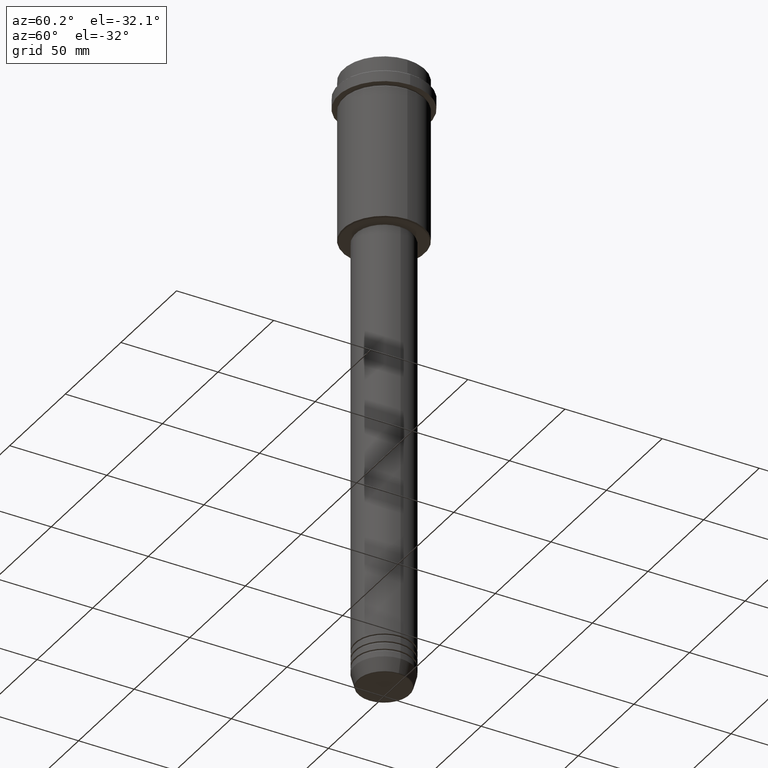
[diagram: clean part render]
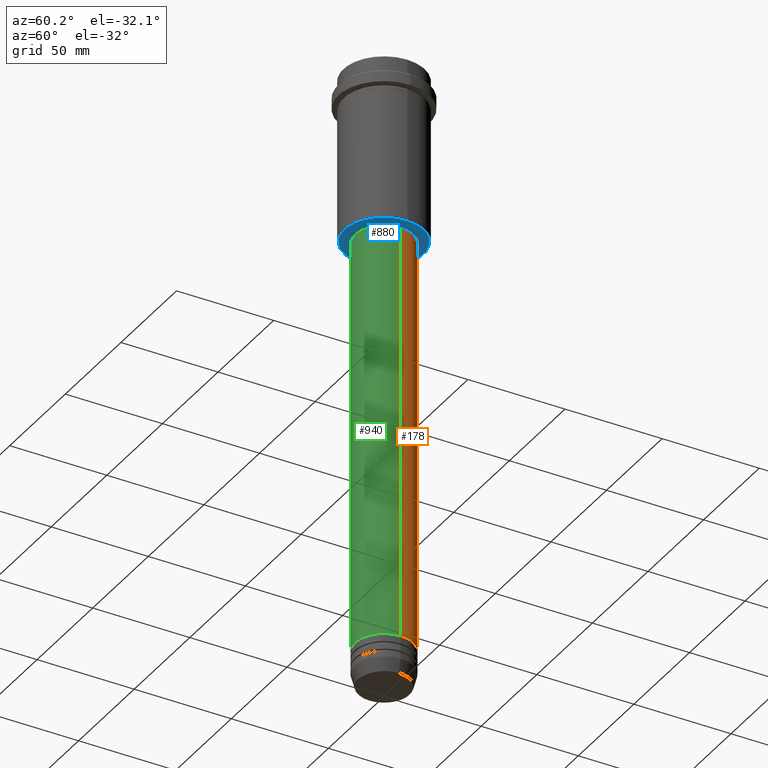
[diagram: same view with three faces highlighted in distinct colors, each labeled with its STEP entity id]
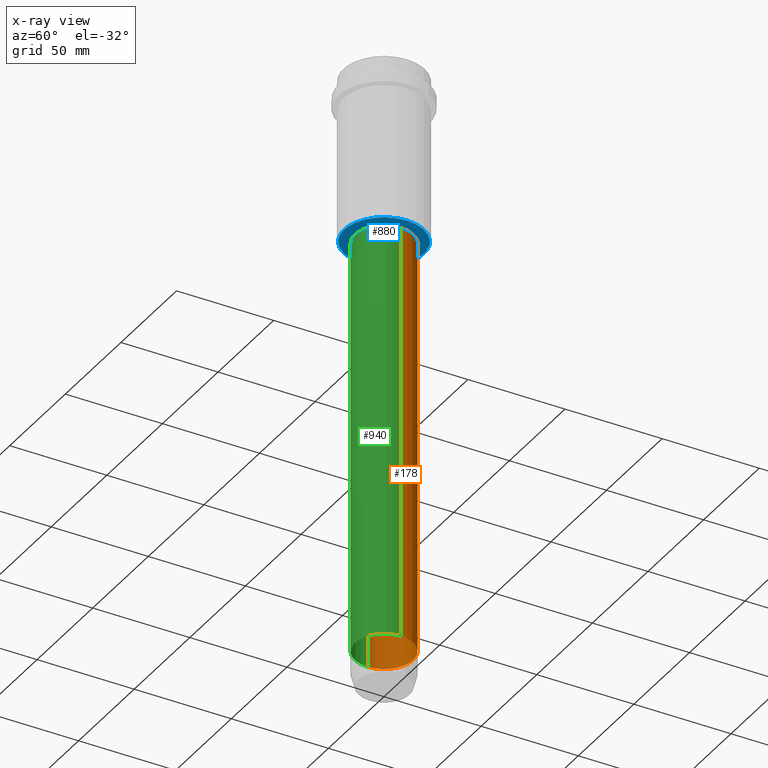
[diagram: x-ray of the same camera — body ghosted, the three highlighted faces saturated]
A machine part, auxiliary view with three faces highlighted in distinct colors.
The next image is the same camera in x-ray (body ghosted, the three faces saturated) — at least one of them is partly hidden behind the body in this view.
Their STEP definitions:

[orange] entity #178 — the highlighted cylindrical surface (edge-blend (fillet) strip) has radius 15 mm, axis along (-0, -0, 1).
#66 = CARTESIAN_POINT ( 'NONE',  ( -15.00000000000000000, 1.836970198721029589E-15, -85.99999999999994316 ) ) ;
#70 = ORIENTED_EDGE ( 'NONE', *, *, #352, .T. ) ;
#91 = VERTEX_POINT ( 'NONE', #359 ) ;
#107 = DIRECTION ( 'NONE',  ( 1.000000000000000000, 0.000000000000000000, 0.000000000000000000 ) ) ;
#164 = DIRECTION ( 'NONE',  ( -0.000000000000000000, -0.000000000000000000, 1.000000000000000000 ) ) ;
#178 = ADVANCED_FACE ( 'NONE', ( #729 ), #292, .T. ) ;
#215 = CARTESIAN_POINT ( 'NONE',  ( 15.00000000000000000, 0.000000000000000000, -300.9999999999998863 ) ) ;
#216 = CARTESIAN_POINT ( 'NONE',  ( 0.000000000000000000, 0.000000000000000000, -300.9999999999998863 ) ) ;
#220 = EDGE_CURVE ( 'NONE', #91, #254, #866, .T. ) ;
#254 = VERTEX_POINT ( 'NONE', #66 ) ;
#292 = CYLINDRICAL_SURFACE ( 'NONE', #913, 15.00000000000000000 ) ;
#327 = DIRECTION ( 'NONE',  ( -0.000000000000000000, -0.000000000000000000, 1.000000000000000000 ) ) ;
#341 = EDGE_CURVE ( 'NONE', #1076, #254, #413, .T. ) ;
#352 = EDGE_CURVE ( 'NONE', #741, #1076, #1272, .T. ) ;
#359 = CARTESIAN_POINT ( 'NONE',  ( 15.00000000000000000, 0.000000000000000000, -85.99999999999994316 ) ) ;
#390 = DIRECTION ( 'NONE',  ( -0.000000000000000000, -0.000000000000000000, 1.000000000000000000 ) ) ;
#413 = LINE ( 'NONE', #1298, #1197 ) ;
#490 = CARTESIAN_POINT ( 'NONE',  ( 0.000000000000000000, 0.000000000000000000, 0.000000000000000000 ) ) ;
#551 = DIRECTION ( 'NONE',  ( -0.000000000000000000, -0.000000000000000000, 1.000000000000000000 ) ) ;
#555 = CARTESIAN_POINT ( 'NONE',  ( -15.00000000000000000, 1.836970198721029589E-15, -300.9999999999998863 ) ) ;
#598 = EDGE_CURVE ( 'NONE', #741, #91, #933, .T. ) ;
#707 = DIRECTION ( 'NONE',  ( 1.000000000000000000, 0.000000000000000000, 0.000000000000000000 ) ) ;
#721 = EDGE_LOOP ( 'NONE', ( #70, #746, #902, #1010 ) ) ;
#729 = FACE_OUTER_BOUND ( 'NONE', #721, .T. ) ;
#735 = CARTESIAN_POINT ( 'NONE',  ( 0.000000000000000000, 0.000000000000000000, -85.99999999999994316 ) ) ;
#741 = VERTEX_POINT ( 'NONE', #215 ) ;
#746 = ORIENTED_EDGE ( 'NONE', *, *, #341, .T. ) ;
#778 = VECTOR ( 'NONE', #390, 1000.000000000000000 ) ;
#799 = AXIS2_PLACEMENT_3D ( 'NONE', #735, #164, #707 ) ;
#818 = AXIS2_PLACEMENT_3D ( 'NONE', #216, #551, #107 ) ;
#848 = DIRECTION ( 'NONE',  ( 1.000000000000000000, 0.000000000000000000, 0.000000000000000000 ) ) ;
#866 = CIRCLE ( 'NONE', #799, 15.00000000000000000 ) ;
#902 = ORIENTED_EDGE ( 'NONE', *, *, #220, .F. ) ;
#913 = AXIS2_PLACEMENT_3D ( 'NONE', #490, #943, #848 ) ;
#933 = LINE ( 'NONE', #1360, #778 ) ;
#943 = DIRECTION ( 'NONE',  ( -0.000000000000000000, -0.000000000000000000, 1.000000000000000000 ) ) ;
#1010 = ORIENTED_EDGE ( 'NONE', *, *, #598, .F. ) ;
#1076 = VERTEX_POINT ( 'NONE', #555 ) ;
#1197 = VECTOR ( 'NONE', #327, 1000.000000000000000 ) ;
#1272 = CIRCLE ( 'NONE', #818, 15.00000000000000000 ) ;
#1298 = CARTESIAN_POINT ( 'NONE',  ( -15.00000000000000000, 1.836970198721029589E-15, 0.000000000000000000 ) ) ;
#1360 = CARTESIAN_POINT ( 'NONE',  ( 15.00000000000000000, 0.000000000000000000, 0.000000000000000000 ) ) ;

[blue] entity #880 — the highlighted planar face has unit normal (0, 0, -1).
#13 = AXIS2_PLACEMENT_3D ( 'NONE', #1000, #1190, #658 ) ;
#129 = AXIS2_PLACEMENT_3D ( 'NONE', #431, #1416, #1188 ) ;
#142 = CARTESIAN_POINT ( 'NONE',  ( -14.49999999999999822, 1.775737858763662015E-15, -84.99999999999998579 ) ) ;
#145 = CIRCLE ( 'NONE', #753, 14.49999999999999822 ) ;
#221 = CARTESIAN_POINT ( 'NONE',  ( -20.49999999999998934, 2.541142108230757085E-15, -85.00000000000000000 ) ) ;
#268 = ORIENTED_EDGE ( 'NONE', *, *, #766, .T. ) ;
#356 = VERTEX_POINT ( 'NONE', #427 ) ;
#367 = CIRCLE ( 'NONE', #1363, 20.49999999999998934 ) ;
#396 = VERTEX_POINT ( 'NONE', #221 ) ;
#417 = DIRECTION ( 'NONE',  ( -0.000000000000000000, -0.000000000000000000, 1.000000000000000000 ) ) ;
#427 = CARTESIAN_POINT ( 'NONE',  ( 14.49999999999999822, 0.000000000000000000, -84.99999999999998579 ) ) ;
#431 = CARTESIAN_POINT ( 'NONE',  ( 0.000000000000000000, 0.000000000000000000, -85.00000000000000000 ) ) ;
#435 = ORIENTED_EDGE ( 'NONE', *, *, #1164, .T. ) ;
#523 = ORIENTED_EDGE ( 'NONE', *, *, #1120, .T. ) ;
#533 = EDGE_LOOP ( 'NONE', ( #1402, #523 ) ) ;
#594 = EDGE_LOOP ( 'NONE', ( #435, #268 ) ) ;
#626 = VERTEX_POINT ( 'NONE', #142 ) ;
#636 = CIRCLE ( 'NONE', #13, 14.49999999999999822 ) ;
#658 = DIRECTION ( 'NONE',  ( 1.000000000000000000, 0.000000000000000000, 0.000000000000000000 ) ) ;
#671 = CARTESIAN_POINT ( 'NONE',  ( 0.000000000000000000, 0.000000000000000000, -85.00000000000000000 ) ) ;
#753 = AXIS2_PLACEMENT_3D ( 'NONE', #1089, #417, #1181 ) ;
#766 = EDGE_CURVE ( 'NONE', #626, #356, #636, .T. ) ;
#770 = DIRECTION ( 'NONE',  ( -1.000000000000000000, 0.000000000000000000, 0.000000000000000000 ) ) ;
#870 = AXIS2_PLACEMENT_3D ( 'NONE', #1347, #1081, #1067 ) ;
#880 = ADVANCED_FACE ( 'NONE', ( #884, #1392 ), #1231, .T. ) ;
#884 = FACE_OUTER_BOUND ( 'NONE', #533, .T. ) ;
#995 = CARTESIAN_POINT ( 'NONE',  ( 20.49999999999998934, 0.000000000000000000, -85.00000000000000000 ) ) ;
#1000 = CARTESIAN_POINT ( 'NONE',  ( 0.000000000000000000, 0.000000000000000000, -84.99999999999998579 ) ) ;
#1023 = EDGE_CURVE ( 'NONE', #1139, #396, #1225, .T. ) ;
#1067 = DIRECTION ( 'NONE',  ( -1.000000000000000000, 0.000000000000000000, -0.000000000000000000 ) ) ;
#1081 = DIRECTION ( 'NONE',  ( 0.000000000000000000, 0.000000000000000000, -1.000000000000000000 ) ) ;
#1089 = CARTESIAN_POINT ( 'NONE',  ( 0.000000000000000000, 0.000000000000000000, -84.99999999999998579 ) ) ;
#1120 = EDGE_CURVE ( 'NONE', #396, #1139, #367, .T. ) ;
#1139 = VERTEX_POINT ( 'NONE', #995 ) ;
#1164 = EDGE_CURVE ( 'NONE', #356, #626, #145, .T. ) ;
#1181 = DIRECTION ( 'NONE',  ( 1.000000000000000000, 0.000000000000000000, 0.000000000000000000 ) ) ;
#1188 = DIRECTION ( 'NONE',  ( -1.000000000000000000, 0.000000000000000000, 0.000000000000000000 ) ) ;
#1190 = DIRECTION ( 'NONE',  ( -0.000000000000000000, -0.000000000000000000, 1.000000000000000000 ) ) ;
#1225 = CIRCLE ( 'NONE', #129, 20.49999999999998934 ) ;
#1231 = PLANE ( 'NONE',  #870 ) ;
#1347 = CARTESIAN_POINT ( 'NONE',  ( 0.000000000000000000, 21.00000000000000000, -85.00000000000000000 ) ) ;
#1363 = AXIS2_PLACEMENT_3D ( 'NONE', #671, #1400, #770 ) ;
#1392 = FACE_BOUND ( 'NONE', #594, .T. ) ;
#1400 = DIRECTION ( 'NONE',  ( 0.000000000000000000, 0.000000000000000000, -1.000000000000000000 ) ) ;
#1402 = ORIENTED_EDGE ( 'NONE', *, *, #1023, .T. ) ;
#1416 = DIRECTION ( 'NONE',  ( 0.000000000000000000, 0.000000000000000000, -1.000000000000000000 ) ) ;

[green] entity #940 — the highlighted cylindrical surface (edge-blend (fillet) strip) has radius 15 mm, axis along (-0, -0, 1).
#8 = FACE_OUTER_BOUND ( 'NONE', #756, .T. ) ;
#24 = DIRECTION ( 'NONE',  ( -0.000000000000000000, -0.000000000000000000, 1.000000000000000000 ) ) ;
#66 = CARTESIAN_POINT ( 'NONE',  ( -15.00000000000000000, 1.836970198721029589E-15, -85.99999999999994316 ) ) ;
#91 = VERTEX_POINT ( 'NONE', #359 ) ;
#215 = CARTESIAN_POINT ( 'NONE',  ( 15.00000000000000000, 0.000000000000000000, -300.9999999999998863 ) ) ;
#254 = VERTEX_POINT ( 'NONE', #66 ) ;
#301 = ORIENTED_EDGE ( 'NONE', *, *, #783, .F. ) ;
#327 = DIRECTION ( 'NONE',  ( -0.000000000000000000, -0.000000000000000000, 1.000000000000000000 ) ) ;
#341 = EDGE_CURVE ( 'NONE', #1076, #254, #413, .T. ) ;
#359 = CARTESIAN_POINT ( 'NONE',  ( 15.00000000000000000, 0.000000000000000000, -85.99999999999994316 ) ) ;
#390 = DIRECTION ( 'NONE',  ( -0.000000000000000000, -0.000000000000000000, 1.000000000000000000 ) ) ;
#392 = AXIS2_PLACEMENT_3D ( 'NONE', #1168, #518, #754 ) ;
#413 = LINE ( 'NONE', #1298, #1197 ) ;
#477 = CARTESIAN_POINT ( 'NONE',  ( 0.000000000000000000, 0.000000000000000000, 0.000000000000000000 ) ) ;
#514 = CIRCLE ( 'NONE', #541, 15.00000000000000000 ) ;
#518 = DIRECTION ( 'NONE',  ( -0.000000000000000000, -0.000000000000000000, 1.000000000000000000 ) ) ;
#541 = AXIS2_PLACEMENT_3D ( 'NONE', #894, #1210, #808 ) ;
#555 = CARTESIAN_POINT ( 'NONE',  ( -15.00000000000000000, 1.836970198721029589E-15, -300.9999999999998863 ) ) ;
#598 = EDGE_CURVE ( 'NONE', #741, #91, #933, .T. ) ;
#741 = VERTEX_POINT ( 'NONE', #215 ) ;
#752 = ORIENTED_EDGE ( 'NONE', *, *, #341, .F. ) ;
#754 = DIRECTION ( 'NONE',  ( 1.000000000000000000, 0.000000000000000000, 0.000000000000000000 ) ) ;
#756 = EDGE_LOOP ( 'NONE', ( #752, #1366, #877, #301 ) ) ;
#778 = VECTOR ( 'NONE', #390, 1000.000000000000000 ) ;
#783 = EDGE_CURVE ( 'NONE', #254, #91, #514, .T. ) ;
#808 = DIRECTION ( 'NONE',  ( 1.000000000000000000, 0.000000000000000000, 0.000000000000000000 ) ) ;
#877 = ORIENTED_EDGE ( 'NONE', *, *, #598, .T. ) ;
#894 = CARTESIAN_POINT ( 'NONE',  ( 0.000000000000000000, 0.000000000000000000, -85.99999999999994316 ) ) ;
#933 = LINE ( 'NONE', #1360, #778 ) ;
#940 = ADVANCED_FACE ( 'NONE', ( #8 ), #1108, .T. ) ;
#1040 = EDGE_CURVE ( 'NONE', #1076, #741, #1052, .T. ) ;
#1052 = CIRCLE ( 'NONE', #392, 15.00000000000000000 ) ;
#1076 = VERTEX_POINT ( 'NONE', #555 ) ;
#1108 = CYLINDRICAL_SURFACE ( 'NONE', #1273, 15.00000000000000000 ) ;
#1168 = CARTESIAN_POINT ( 'NONE',  ( 0.000000000000000000, 0.000000000000000000, -300.9999999999998863 ) ) ;
#1197 = VECTOR ( 'NONE', #327, 1000.000000000000000 ) ;
#1210 = DIRECTION ( 'NONE',  ( -0.000000000000000000, -0.000000000000000000, 1.000000000000000000 ) ) ;
#1273 = AXIS2_PLACEMENT_3D ( 'NONE', #477, #24, #1332 ) ;
#1298 = CARTESIAN_POINT ( 'NONE',  ( -15.00000000000000000, 1.836970198721029589E-15, 0.000000000000000000 ) ) ;
#1332 = DIRECTION ( 'NONE',  ( 1.000000000000000000, 0.000000000000000000, 0.000000000000000000 ) ) ;
#1360 = CARTESIAN_POINT ( 'NONE',  ( 15.00000000000000000, 0.000000000000000000, 0.000000000000000000 ) ) ;
#1366 = ORIENTED_EDGE ( 'NONE', *, *, #1040, .T. ) ;